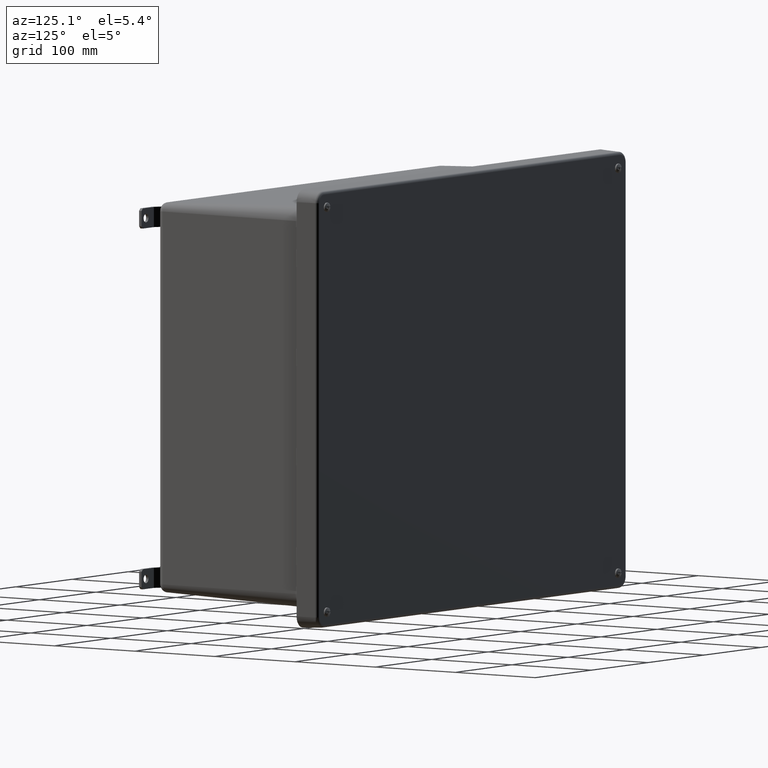
[diagram: clean part render]
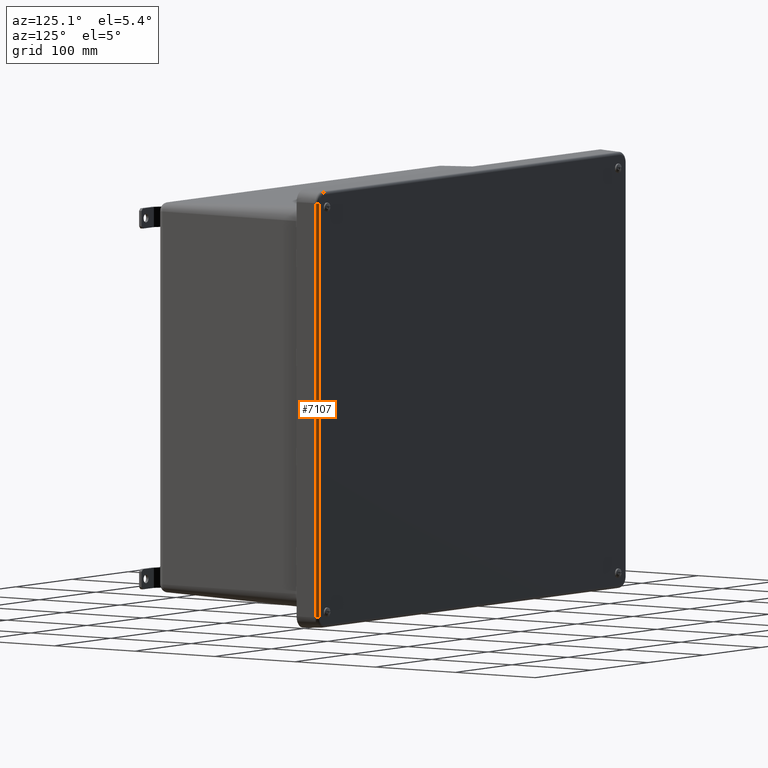
[diagram: same view with one face highlighted and labeled with its STEP entity id]
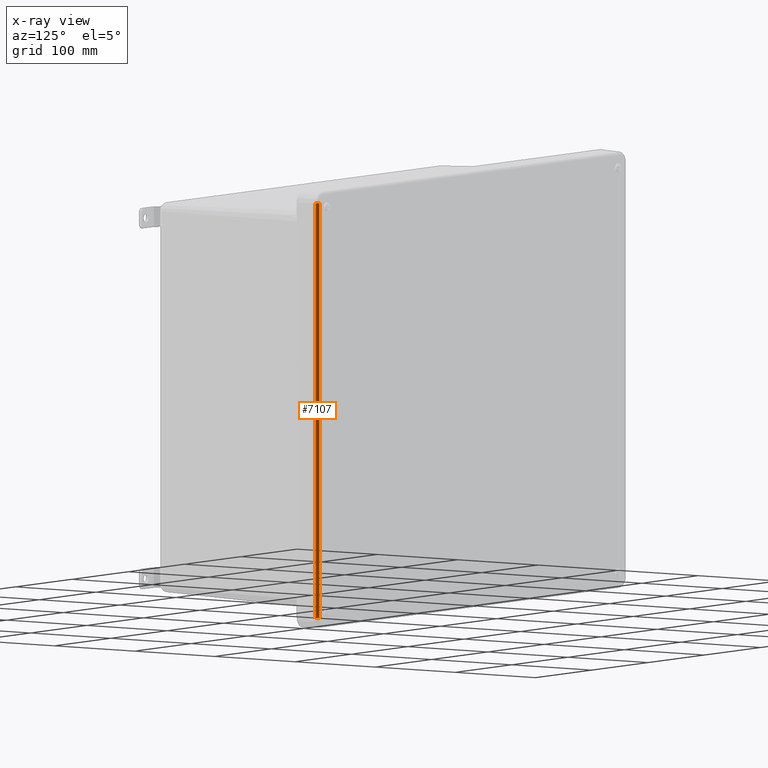
[diagram: x-ray of the same camera — body ghosted, the highlighted face saturated]
A machine part, auxiliary view. The second image highlights one B-rep face of the part: STEP entity #7107.
The next image is the same camera in x-ray: the body ghosted, the highlighted face saturated — about 0% of this face is hidden behind the body in this view.
In plain terms, the highlighted cylindrical surface (edge-blend (fillet) strip) has radius 3.175 mm, axis along (0, 0, 1).
Its self-contained STEP definition (entity closure, byte-faithful):
#245 = ORIENTED_EDGE ( 'NONE', *, *, #5933, .F. ) ;
#2447 = VERTEX_POINT ( 'NONE', #12320 ) ;
#3761 = CARTESIAN_POINT ( 'NONE',  ( 10.67537942916063700, -0.1249999999999999000, -8.356999999999997500 ) ) ;
#4454 = VERTEX_POINT ( 'NONE', #7941 ) ;
#4977 = LINE ( 'NONE', #20777, #33220 ) ;
#5411 = CIRCLE ( 'NONE', #33396, 0.1249999999999993500 ) ;
#5933 = EDGE_CURVE ( 'NONE', #2447, #31342, #4977, .T. ) ;
#7107 = ADVANCED_FACE ( 'NONE', ( #18152 ), #8333, .T. ) ;
#7124 = DIRECTION ( 'NONE',  ( 1.000000000000000000, 0.0000000000000000000, 0.0000000000000000000 ) ) ;
#7290 = DIRECTION ( 'NONE',  ( -8.753910509840912200E-015, 0.0000000000000000000, 1.000000000000000000 ) ) ;
#7941 = CARTESIAN_POINT ( 'NONE',  ( 10.80020812100496200, -0.1184580054696319500, -8.356999999999995800 ) ) ;
#8333 = CYLINDRICAL_SURFACE ( 'NONE', #21111, 0.1249999999999993500 ) ;
#9199 = DIRECTION ( 'NONE',  ( 4.581442773976815900E-016, -8.741913579725647000E-015, 1.000000000000000000 ) ) ;
#9402 = VERTEX_POINT ( 'NONE', #34874 ) ;
#11482 = ORIENTED_EDGE ( 'NONE', *, *, #38409, .F. ) ;
#12320 = CARTESIAN_POINT ( 'NONE',  ( 10.67537942916063700, 0.0000000000000000000, 8.356999999999999300 ) ) ;
#12649 = EDGE_CURVE ( 'NONE', #4454, #31342, #5411, .T. ) ;
#17115 = CARTESIAN_POINT ( 'NONE',  ( 10.67537942916063700, 0.0000000000000000000, -8.356999999999995800 ) ) ;
#17317 = CARTESIAN_POINT ( 'NONE',  ( 10.80020812100496200, -0.1184580054696319500, 8.356999999999994000 ) ) ;
#18152 = FACE_OUTER_BOUND ( 'NONE', #21120, .T. ) ;
#18164 = LINE ( 'NONE', #17317, #36599 ) ;
#20777 = CARTESIAN_POINT ( 'NONE',  ( 10.67537942916063700, 0.0000000000000000000, -8.356999999999995800 ) ) ;
#20942 = DIRECTION ( 'NONE',  ( 0.0000000000000000000, 0.0000000000000000000, -1.000000000000000000 ) ) ;
#21111 = AXIS2_PLACEMENT_3D ( 'NONE', #3761, #32907, #7124 ) ;
#21120 = EDGE_LOOP ( 'NONE', ( #32633, #245, #11482, #23468 ) ) ;
#21884 = EDGE_CURVE ( 'NONE', #4454, #9402, #18164, .T. ) ;
#23468 = ORIENTED_EDGE ( 'NONE', *, *, #21884, .F. ) ;
#29355 = CARTESIAN_POINT ( 'NONE',  ( 10.67537942916064100, -0.1249999999999999000, -8.356999999999995800 ) ) ;
#29726 = AXIS2_PLACEMENT_3D ( 'NONE', #31269, #9199, #34976 ) ;
#31269 = CARTESIAN_POINT ( 'NONE',  ( 10.67537942916064100, -0.1249999999999999000, 8.356999999999997500 ) ) ;
#31342 = VERTEX_POINT ( 'NONE', #17115 ) ;
#32633 = ORIENTED_EDGE ( 'NONE', *, *, #12649, .T. ) ;
#32907 = DIRECTION ( 'NONE',  ( -0.0000000000000000000, 0.0000000000000000000, 1.000000000000000000 ) ) ;
#33073 = DIRECTION ( 'NONE',  ( 1.000000000000000000, 0.0000000000000000000, 8.741913579725688100E-015 ) ) ;
#33220 = VECTOR ( 'NONE', #20942, 39.37007874015748100 ) ;
#33396 = AXIS2_PLACEMENT_3D ( 'NONE', #29355, #7290, #33073 ) ;
#34874 = CARTESIAN_POINT ( 'NONE',  ( 10.80020812100496200, -0.1184580054696319500, 8.356999999999997500 ) ) ;
#34976 = DIRECTION ( 'NONE',  ( 0.0000000000000000000, -1.000000000000000000, -8.741913579725642300E-015 ) ) ;
#36599 = VECTOR ( 'NONE', #43366, 39.37007874015748100 ) ;
#38409 = EDGE_CURVE ( 'NONE', #9402, #2447, #41236, .T. ) ;
#41236 = CIRCLE ( 'NONE', #29726, 0.1250000000000000000 ) ;
#43366 = DIRECTION ( 'NONE',  ( -0.0000000000000000000, -0.0000000000000000000, 1.000000000000000000 ) ) ;